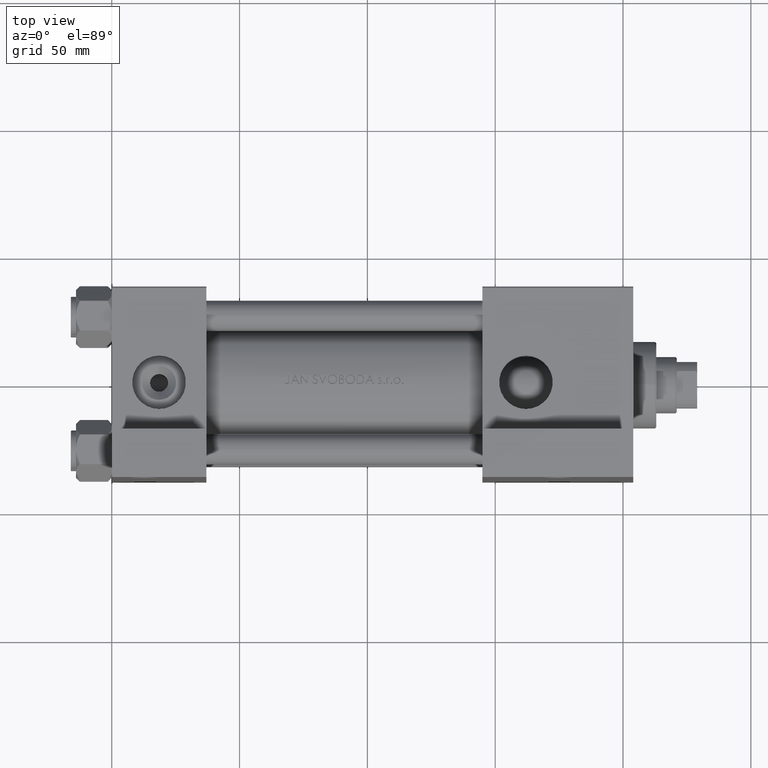
[diagram: clean part render]
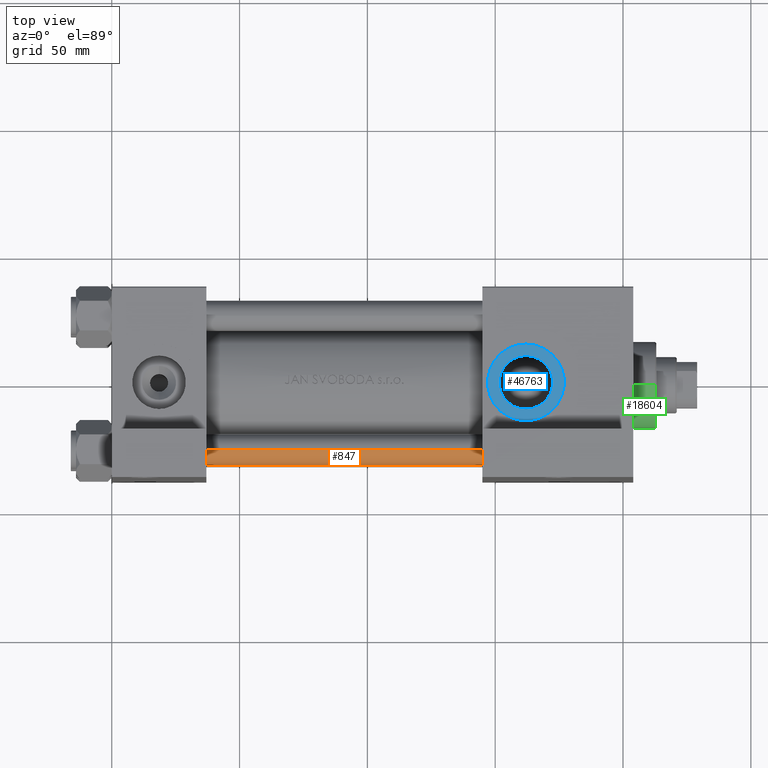
[diagram: same view with three faces highlighted in distinct colors, each labeled with its STEP entity id]
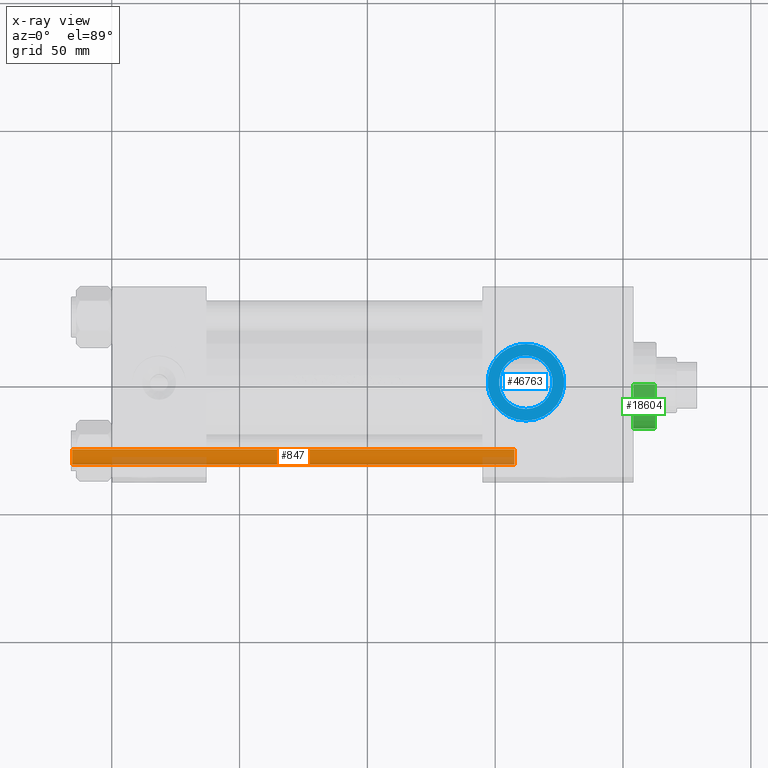
[diagram: x-ray of the same camera — body ghosted, the three highlighted faces saturated]
A machine part, top view with three faces highlighted in distinct colors.
The next image is the same camera in x-ray (body ghosted, the three faces saturated) — at least one of them is partly hidden behind the body in this view.
Their STEP definitions:

[orange] entity #847 — the highlighted cylindrical surface (edge-blend (fillet) strip) has radius 6 mm, axis along (1, 0, 0).
#847 = ADVANCED_FACE ( 'NONE', ( #46976 ), #43228, .T. ) ;
#3511 = EDGE_CURVE ( 'NONE', #41787, #6512, #18610, .T. ) ;
#3839 = EDGE_LOOP ( 'NONE', ( #29183, #35820, #38645, #16692 ) ) ;
#4204 = DIRECTION ( 'NONE',  ( 0.000000000000000000, 0.000000000000000000, -1.000000000000000000 ) ) ;
#5875 = DIRECTION ( 'NONE',  ( -0.000000000000000000, -0.000000000000000000, -1.000000000000000000 ) ) ;
#5928 = VERTEX_POINT ( 'NONE', #34669 ) ;
#6099 = CARTESIAN_POINT ( 'NONE',  ( 6.000000000000000888, 7.347880794884120722E-16, 0.5000000000000559552 ) ) ;
#6512 = VERTEX_POINT ( 'NONE', #6099 ) ;
#9141 = CARTESIAN_POINT ( 'NONE',  ( 0.000000000000000000, 0.000000000000000000, 174.0000000000000000 ) ) ;
#13219 = EDGE_CURVE ( 'NONE', #6512, #5928, #21093, .T. ) ;
#14877 = CARTESIAN_POINT ( 'NONE',  ( 6.000000000000000888, 7.347880794884120722E-16, 174.0000000000000000 ) ) ;
#16692 = ORIENTED_EDGE ( 'NONE', *, *, #21007, .F. ) ;
#16946 = VECTOR ( 'NONE', #5875, 1000.000000000000000 ) ;
#17820 = CARTESIAN_POINT ( 'NONE',  ( -6.000000000000000888, 0.000000000000000000, 174.0000000000000000 ) ) ;
#18610 = LINE ( 'NONE', #14877, #45523 ) ;
#19424 = VERTEX_POINT ( 'NONE', #38032 ) ;
#21007 = EDGE_CURVE ( 'NONE', #19424, #5928, #29267, .T. ) ;
#21093 = CIRCLE ( 'NONE', #24286, 6.000000000000000888 ) ;
#21327 = DIRECTION ( 'NONE',  ( -1.000000000000000000, 0.000000000000000000, 0.000000000000000000 ) ) ;
#24286 = AXIS2_PLACEMENT_3D ( 'NONE', #43708, #39737, #24559 ) ;
#24319 = DIRECTION ( 'NONE',  ( -0.000000000000000000, -0.000000000000000000, -1.000000000000000000 ) ) ;
#24559 = DIRECTION ( 'NONE',  ( 1.000000000000000000, 0.000000000000000000, 0.000000000000000000 ) ) ;
#24790 = AXIS2_PLACEMENT_3D ( 'NONE', #9141, #24319, #21327 ) ;
#27091 = DIRECTION ( 'NONE',  ( 1.000000000000000000, 0.000000000000000000, 0.000000000000000000 ) ) ;
#29183 = ORIENTED_EDGE ( 'NONE', *, *, #47872, .T. ) ;
#29267 = LINE ( 'NONE', #17820, #16946 ) ;
#30051 = DIRECTION ( 'NONE',  ( -0.000000000000000000, -0.000000000000000000, -1.000000000000000000 ) ) ;
#34669 = CARTESIAN_POINT ( 'NONE',  ( -6.000000000000000888, 0.000000000000000000, 0.5000000000000559552 ) ) ;
#35820 = ORIENTED_EDGE ( 'NONE', *, *, #3511, .T. ) ;
#35982 = CIRCLE ( 'NONE', #46281, 6.000000000000000888 ) ;
#38032 = CARTESIAN_POINT ( 'NONE',  ( -6.000000000000000888, 0.000000000000000000, 173.5000000000000000 ) ) ;
#38302 = CARTESIAN_POINT ( 'NONE',  ( 0.000000000000000000, 0.000000000000000000, 173.5000000000000000 ) ) ;
#38316 = CARTESIAN_POINT ( 'NONE',  ( 6.000000000000000888, 7.347880794884120722E-16, 173.5000000000000000 ) ) ;
#38645 = ORIENTED_EDGE ( 'NONE', *, *, #13219, .T. ) ;
#39737 = DIRECTION ( 'NONE',  ( -0.000000000000000000, -0.000000000000000000, 1.000000000000000000 ) ) ;
#41787 = VERTEX_POINT ( 'NONE', #38316 ) ;
#43228 = CYLINDRICAL_SURFACE ( 'NONE', #24790, 6.000000000000000888 ) ;
#43708 = CARTESIAN_POINT ( 'NONE',  ( 0.000000000000000000, 0.000000000000000000, 0.5000000000000559552 ) ) ;
#45523 = VECTOR ( 'NONE', #30051, 1000.000000000000000 ) ;
#46281 = AXIS2_PLACEMENT_3D ( 'NONE', #38302, #4204, #27091 ) ;
#46976 = FACE_OUTER_BOUND ( 'NONE', #3839, .T. ) ;
#47872 = EDGE_CURVE ( 'NONE', #19424, #41787, #35982, .T. ) ;

[blue] entity #46763 — the highlighted planar face has unit normal (0, -0, 1).
#552 = CARTESIAN_POINT ( 'NONE',  ( 161.9999999999999716, -37.29999999999999716, 15.00000000000002842 ) ) ;
#1320 = VERTEX_POINT ( 'NONE', #32106 ) ;
#2445 = AXIS2_PLACEMENT_3D ( 'NONE', #35622, #23916, #12724 ) ;
#3386 = ORIENTED_EDGE ( 'NONE', *, *, #29833, .F. ) ;
#3540 = EDGE_CURVE ( 'NONE', #22495, #40045, #20133, .T. ) ;
#5308 = CIRCLE ( 'NONE', #42670, 10.47999999999998622 ) ;
#8364 = DIRECTION ( 'NONE',  ( 0.000000000000000000, -1.000000000000000000, -8.673617379884036705E-17 ) ) ;
#9336 = CARTESIAN_POINT ( 'NONE',  ( 161.9999999999999716, -37.29999999999999716, 3.486794186713383443E-15 ) ) ;
#12235 = CARTESIAN_POINT ( 'NONE',  ( 161.9999999999999716, -37.29999999999999716, 10.47999999999998977 ) ) ;
#12724 = DIRECTION ( 'NONE',  ( 0.000000000000000000, 8.673617379884036705E-17, -1.000000000000000000 ) ) ;
#12820 = DIRECTION ( 'NONE',  ( 0.000000000000000000, -1.000000000000000000, -8.673617379884036705E-17 ) ) ;
#18678 = CIRCLE ( 'NONE', #31393, 10.47999999999998622 ) ;
#20133 = CIRCLE ( 'NONE', #32740, 15.00000000000002487 ) ;
#20443 = PLANE ( 'NONE',  #2445 ) ;
#22495 = VERTEX_POINT ( 'NONE', #552 ) ;
#23916 = DIRECTION ( 'NONE',  ( 0.000000000000000000, -1.000000000000000000, -8.673617379884036705E-17 ) ) ;
#25337 = EDGE_CURVE ( 'NONE', #33353, #1320, #18678, .T. ) ;
#25429 = DIRECTION ( 'NONE',  ( 0.000000000000000000, 0.000000000000000000, -1.000000000000000000 ) ) ;
#26248 = CIRCLE ( 'NONE', #36604, 15.00000000000002487 ) ;
#26542 = CARTESIAN_POINT ( 'NONE',  ( 161.9999999999999716, -37.29999999999999716, 3.486794186713383443E-15 ) ) ;
#27645 = FACE_BOUND ( 'NONE', #44948, .T. ) ;
#29833 = EDGE_CURVE ( 'NONE', #1320, #33353, #5308, .T. ) ;
#31393 = AXIS2_PLACEMENT_3D ( 'NONE', #32905, #32660, #25429 ) ;
#32106 = CARTESIAN_POINT ( 'NONE',  ( 161.9999999999999716, -37.29999999999999716, -10.47999999999998266 ) ) ;
#32660 = DIRECTION ( 'NONE',  ( 0.000000000000000000, -1.000000000000000000, -8.673617379884036705E-17 ) ) ;
#32740 = AXIS2_PLACEMENT_3D ( 'NONE', #26542, #8364, #38970 ) ;
#32905 = CARTESIAN_POINT ( 'NONE',  ( 161.9999999999999716, -37.29999999999999716, 3.486794186713383443E-15 ) ) ;
#33353 = VERTEX_POINT ( 'NONE', #12235 ) ;
#34879 = CARTESIAN_POINT ( 'NONE',  ( 161.9999999999999716, -37.29999999999999716, 3.486794186713383443E-15 ) ) ;
#35622 = CARTESIAN_POINT ( 'NONE',  ( 161.9999999999999716, -37.29999999999999716, 3.486794186713383443E-15 ) ) ;
#36604 = AXIS2_PLACEMENT_3D ( 'NONE', #9336, #12820, #38694 ) ;
#38694 = DIRECTION ( 'NONE',  ( 0.000000000000000000, 0.000000000000000000, -1.000000000000000000 ) ) ;
#38970 = DIRECTION ( 'NONE',  ( 0.000000000000000000, 0.000000000000000000, -1.000000000000000000 ) ) ;
#39841 = ORIENTED_EDGE ( 'NONE', *, *, #3540, .T. ) ;
#40045 = VERTEX_POINT ( 'NONE', #47003 ) ;
#41495 = ORIENTED_EDGE ( 'NONE', *, *, #25337, .F. ) ;
#41674 = ORIENTED_EDGE ( 'NONE', *, *, #42397, .T. ) ;
#42397 = EDGE_CURVE ( 'NONE', #40045, #22495, #26248, .T. ) ;
#42431 = EDGE_LOOP ( 'NONE', ( #41674, #39841 ) ) ;
#42670 = AXIS2_PLACEMENT_3D ( 'NONE', #34879, #46836, #46583 ) ;
#43575 = FACE_OUTER_BOUND ( 'NONE', #42431, .T. ) ;
#44948 = EDGE_LOOP ( 'NONE', ( #3386, #41495 ) ) ;
#46583 = DIRECTION ( 'NONE',  ( 0.000000000000000000, 0.000000000000000000, -1.000000000000000000 ) ) ;
#46763 = ADVANCED_FACE ( 'NONE', ( #27645, #43575 ), #20443, .T. ) ;
#46836 = DIRECTION ( 'NONE',  ( 0.000000000000000000, -1.000000000000000000, -8.673617379884036705E-17 ) ) ;
#47003 = CARTESIAN_POINT ( 'NONE',  ( 161.9999999999999716, -37.29999999999999716, -15.00000000000002132 ) ) ;

[green] entity #18604 — the highlighted cylindrical surface (partial cylindrical patch) has radius 17 mm, axis along (-1, -0, 0).
#165 = VERTEX_POINT ( 'NONE', #28658 ) ;
#2548 = ORIENTED_EDGE ( 'NONE', *, *, #27513, .T. ) ;
#3598 = DIRECTION ( 'NONE',  ( 1.000000000000000000, 0.000000000000000000, 0.000000000000000000 ) ) ;
#3858 = CYLINDRICAL_SURFACE ( 'NONE', #49093, 17.00000000000000000 ) ;
#4635 = DIRECTION ( 'NONE',  ( 1.000000000000000000, 0.000000000000000000, 0.000000000000000000 ) ) ;
#11598 = CIRCLE ( 'NONE', #20347, 17.00000000000000000 ) ;
#11623 = CARTESIAN_POINT ( 'NONE',  ( 0.000000000000000000, 0.000000000000000000, 28.69999999999999929 ) ) ;
#11904 = CARTESIAN_POINT ( 'NONE',  ( -17.00000000000000000, 0.000000000000000000, 37.69999999999999574 ) ) ;
#12538 = VERTEX_POINT ( 'NONE', #28036 ) ;
#13257 = CARTESIAN_POINT ( 'NONE',  ( -17.00000000000000000, 0.000000000000000000, 28.69999999999999929 ) ) ;
#13393 = EDGE_LOOP ( 'NONE', ( #15601, #33478, #28336, #2548 ) ) ;
#14823 = CARTESIAN_POINT ( 'NONE',  ( 0.000000000000000000, 0.000000000000000000, 37.19999999999999574 ) ) ;
#15601 = ORIENTED_EDGE ( 'NONE', *, *, #21471, .F. ) ;
#17163 = DIRECTION ( 'NONE',  ( -0.000000000000000000, -0.000000000000000000, -1.000000000000000000 ) ) ;
#18569 = FACE_OUTER_BOUND ( 'NONE', #13393, .T. ) ;
#18604 = ADVANCED_FACE ( 'NONE', ( #18569 ), #3858, .T. ) ;
#20101 = VECTOR ( 'NONE', #35037, 1000.000000000000000 ) ;
#20282 = EDGE_CURVE ( 'NONE', #165, #43798, #23587, .T. ) ;
#20347 = AXIS2_PLACEMENT_3D ( 'NONE', #11623, #43210, #4635 ) ;
#20962 = VECTOR ( 'NONE', #17163, 1000.000000000000000 ) ;
#21471 = EDGE_CURVE ( 'NONE', #42050, #12538, #31604, .T. ) ;
#22009 = CIRCLE ( 'NONE', #41090, 17.00000000000000000 ) ;
#23587 = LINE ( 'NONE', #11904, #20101 ) ;
#25524 = DIRECTION ( 'NONE',  ( 0.000000000000000000, 0.000000000000000000, -1.000000000000000000 ) ) ;
#27513 = EDGE_CURVE ( 'NONE', #43798, #12538, #11598, .T. ) ;
#28036 = CARTESIAN_POINT ( 'NONE',  ( 17.00000000000000000, 2.081899558550500280E-15, 28.69999999999999929 ) ) ;
#28336 = ORIENTED_EDGE ( 'NONE', *, *, #20282, .T. ) ;
#28658 = CARTESIAN_POINT ( 'NONE',  ( -17.00000000000000000, 0.000000000000000000, 37.19999999999999574 ) ) ;
#30613 = EDGE_CURVE ( 'NONE', #42050, #165, #22009, .T. ) ;
#31604 = LINE ( 'NONE', #42781, #20962 ) ;
#33478 = ORIENTED_EDGE ( 'NONE', *, *, #30613, .T. ) ;
#35037 = DIRECTION ( 'NONE',  ( -0.000000000000000000, -0.000000000000000000, -1.000000000000000000 ) ) ;
#41015 = CARTESIAN_POINT ( 'NONE',  ( 17.00000000000000000, 2.081899558550500280E-15, 37.19999999999999574 ) ) ;
#41090 = AXIS2_PLACEMENT_3D ( 'NONE', #14823, #25524, #3598 ) ;
#41447 = DIRECTION ( 'NONE',  ( -1.000000000000000000, 0.000000000000000000, 0.000000000000000000 ) ) ;
#41689 = DIRECTION ( 'NONE',  ( -0.000000000000000000, -0.000000000000000000, -1.000000000000000000 ) ) ;
#42050 = VERTEX_POINT ( 'NONE', #41015 ) ;
#42781 = CARTESIAN_POINT ( 'NONE',  ( 17.00000000000000000, 2.081899558550500280E-15, 37.69999999999999574 ) ) ;
#43210 = DIRECTION ( 'NONE',  ( 0.000000000000000000, 0.000000000000000000, 1.000000000000000000 ) ) ;
#43798 = VERTEX_POINT ( 'NONE', #13257 ) ;
#45674 = CARTESIAN_POINT ( 'NONE',  ( 0.000000000000000000, 0.000000000000000000, 37.69999999999999574 ) ) ;
#49093 = AXIS2_PLACEMENT_3D ( 'NONE', #45674, #41689, #41447 ) ;